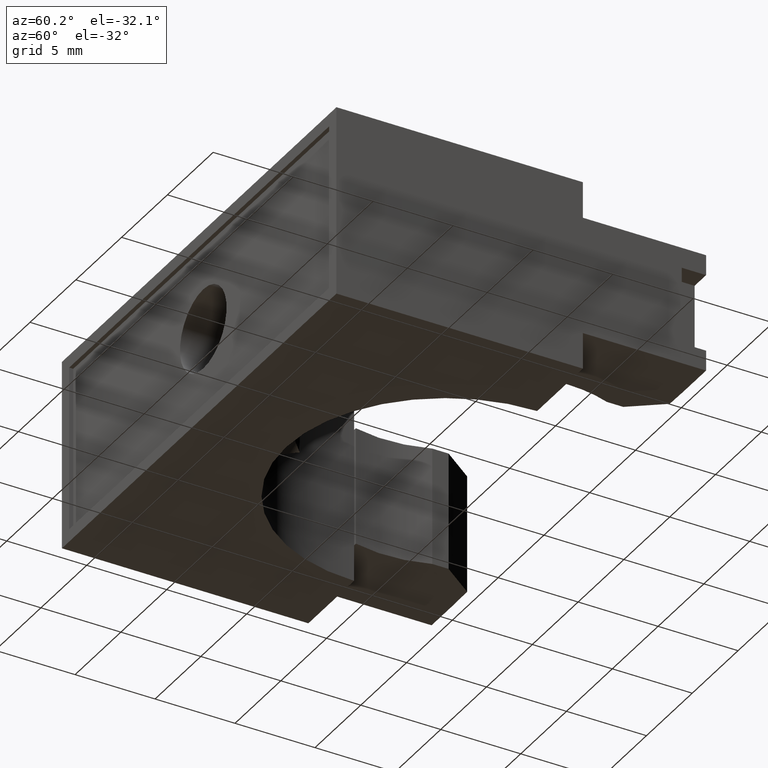
[diagram: clean part render]
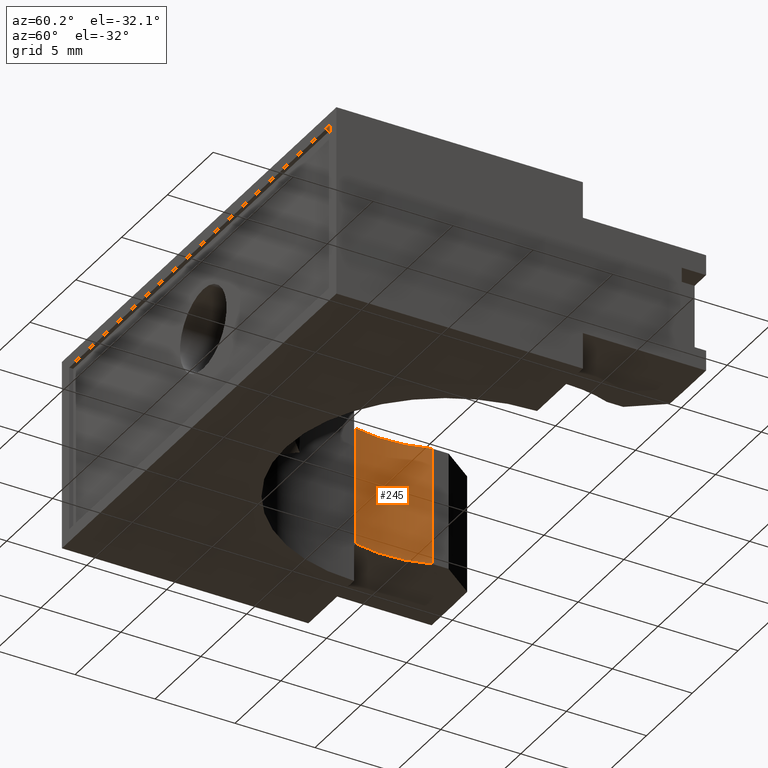
[diagram: same view with one face highlighted and labeled with its STEP entity id]
A machine part, auxiliary view. The second image highlights one B-rep face of the part: STEP entity #245.
In plain terms, the highlighted cylindrical surface (partial cylindrical patch) has radius 7.8661 mm, axis along (-0, -0, 1).
Its self-contained STEP definition (entity closure, byte-faithful):
#243 = VERTEX_POINT ( 'NONE', #950 ) ;
#245 = ADVANCED_FACE ( 'NONE', ( #949 ), #947, .F. ) ;
#262 = EDGE_CURVE ( 'NONE', #271, #265, #931, .T. ) ;
#263 = ORIENTED_EDGE ( 'NONE', *, *, #264, .T. ) ;
#264 = EDGE_CURVE ( 'NONE', #243, #265, #1004, .T. ) ;
#265 = VERTEX_POINT ( 'NONE', #993 ) ;
#271 = VERTEX_POINT ( 'NONE', #967 ) ;
#275 = EDGE_CURVE ( 'NONE', #331, #243, #966, .T. ) ;
#278 = ORIENTED_EDGE ( 'NONE', *, *, #262, .F. ) ;
#279 = ORIENTED_EDGE ( 'NONE', *, *, #280, .T. ) ;
#280 = EDGE_CURVE ( 'NONE', #271, #331, #1043, .T. ) ;
#304 = ORIENTED_EDGE ( 'NONE', *, *, #275, .T. ) ;
#330 = EDGE_LOOP ( 'NONE', ( #278, #279, #304, #263 ) ) ;
#331 = VERTEX_POINT ( 'NONE', #1081 ) ;
#695 = DIRECTION ( 'NONE',  ( -0.0000000000000000000, -0.0000000000000000000, 1.000000000000000000 ) ) ;
#696 = VECTOR ( 'NONE', #695, 39.37007874015748100 ) ;
#697 = CARTESIAN_POINT ( 'NONE',  ( -0.3854666666666664600, 0.1516666666666670600, 0.0000000000000000000 ) ) ;
#931 = LINE ( 'NONE', #697, #696 ) ;
#944 = DIRECTION ( 'NONE',  ( 1.000000000000000000, 0.0000000000000000000, 0.0000000000000000000 ) ) ;
#945 = DIRECTION ( 'NONE',  ( -0.0000000000000000000, -0.0000000000000000000, 1.000000000000000000 ) ) ;
#946 = AXIS2_PLACEMENT_3D ( 'NONE', #948, #945, #944 ) ;
#947 = CYLINDRICAL_SURFACE ( 'NONE', #946, 0.3096874999999998400 ) ;
#948 = CARTESIAN_POINT ( 'NONE',  ( -0.08490476214538889000, 0.2262916571644378000, 0.0000000000000000000 ) ) ;
#949 = FACE_OUTER_BOUND ( 'NONE', #330, .T. ) ;
#950 = CARTESIAN_POINT ( 'NONE',  ( -0.3753125000000004900, 0.3338541666666669500, 0.3804500000000002900 ) ) ;
#966 = LINE ( 'NONE', #1057, #1056 ) ;
#967 = CARTESIAN_POINT ( 'NONE',  ( -0.3854666666666664000, 0.1516666666666670600, 0.08954999999999972700 ) ) ;
#971 = DIRECTION ( 'NONE',  ( 0.0000000000000000000, -1.000000000000000000, -1.102663165959340000E-016 ) ) ;
#972 = DIRECTION ( 'NONE',  ( -0.0000000000000000000, 1.125761535850658700E-016, -1.000000000000000000 ) ) ;
#986 = CARTESIAN_POINT ( 'NONE',  ( -0.08490476214538889000, 0.2262916571644378000, 0.3804500000000002300 ) ) ;
#993 = CARTESIAN_POINT ( 'NONE',  ( -0.3854666666666664000, 0.1516666666666670000, 0.3804500000000002300 ) ) ;
#995 = DIRECTION ( 'NONE',  ( -0.0000000000000000000, -0.0000000000000000000, 1.000000000000000000 ) ) ;
#1004 = CIRCLE ( 'NONE', #1033, 0.3096874999999998400 ) ;
#1025 = DIRECTION ( 'NONE',  ( 0.0000000000000000000, 1.000000000000000000, 2.205326331918679900E-016 ) ) ;
#1033 = AXIS2_PLACEMENT_3D ( 'NONE', #986, #1044, #1025 ) ;
#1041 = CARTESIAN_POINT ( 'NONE',  ( -0.08490476214538889000, 0.2262916571644378000, 0.08954999999999972700 ) ) ;
#1042 = AXIS2_PLACEMENT_3D ( 'NONE', #1041, #972, #971 ) ;
#1043 = CIRCLE ( 'NONE', #1042, 0.3096874999999998400 ) ;
#1044 = DIRECTION ( 'NONE',  ( -0.0000000000000000000, -2.251523071701317000E-016, 1.000000000000000000 ) ) ;
#1056 = VECTOR ( 'NONE', #995, 39.37007874015748100 ) ;
#1057 = CARTESIAN_POINT ( 'NONE',  ( -0.3753125000000004900, 0.3338541666666669500, 0.0000000000000000000 ) ) ;
#1081 = CARTESIAN_POINT ( 'NONE',  ( -0.3753125000000004900, 0.3338541666666669500, 0.08954999999999975500 ) ) ;